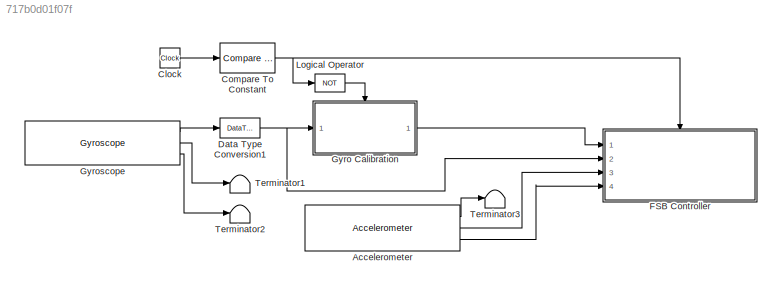
MODEL slx_717b0d01f07f
KIND model
CONFIG AbsTol = auto
CONFIG FixedStep = auto
CONFIG MaxStep = auto
CONFIG MinStep = auto
CONFIG PostLoadFcn = KLQR=[20.0000   13.2675  -28.8721   -1.6327];\nGS = 1.3316e-04; \nES = 0.0047;\nRw = 0.022; % radius of wheel in meters\nKLQRC=KLQR.*[-Rw -Rw 1 1]; % combined LQR Gain with wheel radius scaling\nTS=.007;tstart=TS*110;\nLPF=tf(1,[.03 1]);\nLPFdt=c2d(LPF,TS,'tustin');\n[num,den] = tfdata(LPFdt);\nCnum=num{:};Cden=den{:};\ndisp('controller loaded')\n
CONFIG RelTol = 1e-3
CONFIG SampleTimeConstraint = Unconstrained
CONFIG Solver = ode45
CONFIG SolverMode = Auto
CONFIG SolverName = ode45
CONFIG StartTime = 0.0
CONFIG StopTime = 10.0
BLOCK [Reference] Accelerometer  REF=RASPlib/Accelerometer
  Ports = [0, 3]
  SimulateUsing = Code generation
  SourceBlock = RASPlib/Accelerometer
  SourceType = soMPU6050Accel
BLOCK [Clock] Clock
BLOCK [Reference] Compare To Constant  REF=simulink/Logic and Bit
Operations/Compare
To Constant
  OutDataTypeStr = boolean
  Ports = [1, 1]
  SourceBlock = simulink/Logic and Bit\nOperations/Compare\nTo Constant
  SourceType = Compare To Constant
  ZeroCross = on
  const = tstart
  relop = >
BLOCK [DataTypeConversion] Data Type Conversion1
  OutDataTypeStr = single
  RndMeth = Floor
  SaturateOnIntegerOverflow = off
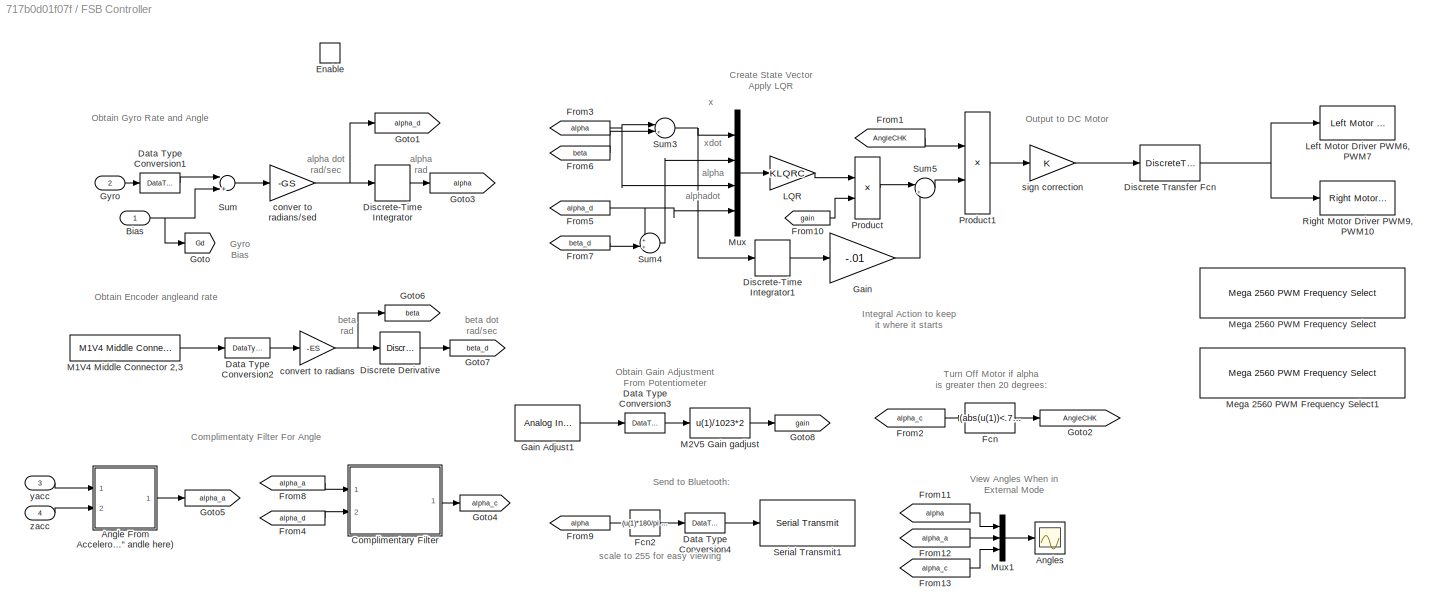
BLOCK [SubSystem] FSB Controller
  Ports = [4, 0, 1]
  RequestExecContextInheritance = off
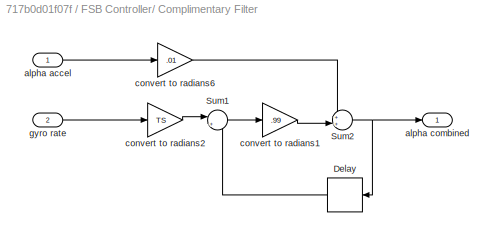
BLOCK [SubSystem] FSB Controller/ Complimentary Filter
  Ports = [2, 1]
  RequestExecContextInheritance = off
BLOCK [Delay] FSB Controller/ Complimentary Filter/Delay
  DelayLength = 1
  InputPortMap = u0
  Ports = [1, 1]
  SampleTime = TS
BLOCK [Sum] FSB Controller/ Complimentary Filter/Sum1
  IconShape = round
  InputSameDT = off
  Inputs = |++
  OutDataTypeStr = Inherit: Inherit via internal rule
  Ports = [2, 1]
  SaturateOnIntegerOverflow = off
BLOCK [Sum] FSB Controller/ Complimentary Filter/Sum2
  IconShape = round
  InputSameDT = off
  Inputs = ++|
  OutDataTypeStr = Inherit: Inherit via internal rule
  Ports = [2, 1]
  SaturateOnIntegerOverflow = off
BLOCK [Inport] FSB Controller/ Complimentary Filter/alpha accel
  IconDisplay = Port number
BLOCK [Outport] FSB Controller/ Complimentary Filter/alpha combined
  IconDisplay = Port number
BLOCK [Gain] FSB Controller/ Complimentary Filter/convert to radians1
  Gain = .99
  OutDataTypeStr = single
  ParamDataTypeStr = Inherit: Inherit via internal rule
  SaturateOnIntegerOverflow = off
BLOCK [Gain] FSB Controller/ Complimentary Filter/convert to radians2
  Gain = TS
  OutDataTypeStr = single
  ParamDataTypeStr = Inherit: Inherit via internal rule
  SaturateOnIntegerOverflow = off
BLOCK [Gain] FSB Controller/ Complimentary Filter/convert to radians6
  Gain = .01
  OutDataTypeStr = single
  ParamDataTypeStr = Inherit: Inherit via internal rule
  SaturateOnIntegerOverflow = off
BLOCK [Inport] FSB Controller/ Complimentary Filter/gyro rate
  IconDisplay = Port number
  Port = 2
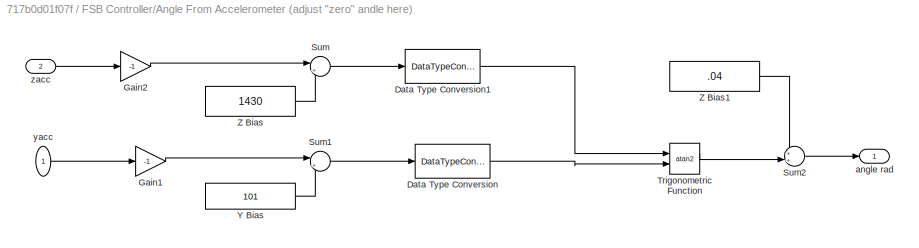
BLOCK [SubSystem] FSB Controller/Angle From Accelerometer (adjust "zero" andle here)
  Ports = [2, 1]
  RequestExecContextInheritance = off
BLOCK [DataTypeConversion] FSB Controller/Angle From Accelerometer (adjust "zero" andle here)/Data Type Conversion
  OutDataTypeStr = single
  RndMeth = Floor
  SaturateOnIntegerOverflow = off
BLOCK [DataTypeConversion] FSB Controller/Angle From Accelerometer (adjust "zero" andle here)/Data Type Conversion1
  OutDataTypeStr = single
  RndMeth = Floor
  SaturateOnIntegerOverflow = off
BLOCK [Gain] FSB Controller/Angle From Accelerometer (adjust "zero" andle here)/Gain1
  Gain = -1
  OutDataTypeStr = Inherit: Inherit via internal rule
  ParamDataTypeStr = Inherit: Inherit via internal rule
  SaturateOnIntegerOverflow = off
BLOCK [Gain] FSB Controller/Angle From Accelerometer (adjust "zero" andle here)/Gain2
  Gain = -1
  OutDataTypeStr = Inherit: Inherit via internal rule
  ParamDataTypeStr = Inherit: Inherit via internal rule
  SaturateOnIntegerOverflow = off
BLOCK [Sum] FSB Controller/Angle From Accelerometer (adjust "zero" andle here)/Sum
  IconShape = round
  InputSameDT = off
  Inputs = |+-
  OutDataTypeStr = Inherit: Inherit via internal rule
  Ports = [2, 1]
  SaturateOnIntegerOverflow = off
BLOCK [Sum] FSB Controller/Angle From Accelerometer (adjust "zero" andle here)/Sum1
  IconShape = round
  InputSameDT = off
  Inputs = |+-
  OutDataTypeStr = Inherit: Inherit via internal rule
  Ports = [2, 1]
  SaturateOnIntegerOverflow = off
BLOCK [Sum] FSB Controller/Angle From Accelerometer (adjust "zero" andle here)/Sum2
  IconShape = round
  InputSameDT = off
  Inputs = ++|
  OutDataTypeStr = Inherit: Inherit via internal rule
  Ports = [2, 1]
  SaturateOnIntegerOverflow = off
BLOCK [Trigonometry] FSB Controller/Angle From Accelerometer (adjust "zero" andle here)/Trigonometric Function
  Operator = atan2
  Ports = [2, 1]
BLOCK [Constant] FSB Controller/Angle From Accelerometer (adjust "zero" andle here)/Y Bias
  Value = 101
BLOCK [Constant] FSB Controller/Angle From Accelerometer (adjust "zero" andle here)/Z Bias
  Value = 1430
BLOCK [Constant] FSB Controller/Angle From Accelerometer (adjust "zero" andle here)/Z Bias1
  OutDataTypeStr = single
  Value = .04
BLOCK [Outport] FSB Controller/Angle From Accelerometer (adjust "zero" andle here)/angle rad
  IconDisplay = Port number
BLOCK [Inport] FSB Controller/Angle From Accelerometer (adjust "zero" andle here)/yacc
  IconDisplay = Port number
BLOCK [Inport] FSB Controller/Angle From Accelerometer (adjust "zero" andle here)/zacc
  IconDisplay = Port number
  Port = 2
BLOCK [Scope] FSB Controller/Angles
  DataFormat = StructureWithTime
  Floating = off
  NumInputPorts = 1
  Ports = [1]
  SampleTime = 0
  SaveName = ScopeData2
  YMax = 0.6
  YMin = -0.5
BLOCK [Inport] FSB Controller/Bias
  IconDisplay = Port number
BLOCK [DataTypeConversion] FSB Controller/Data Type Conversion1
  OutDataTypeStr = single
  RndMeth = Floor
  SaturateOnIntegerOverflow = off
BLOCK [DataTypeConversion] FSB Controller/Data Type Conversion2
  OutDataTypeStr = single
  RndMeth = Floor
  SaturateOnIntegerOverflow = off
BLOCK [DataTypeConversion] FSB Controller/Data Type Conversion3
  OutDataTypeStr = single
  RndMeth = Floor
  SaturateOnIntegerOverflow = off
BLOCK [DataTypeConversion] FSB Controller/Data Type Conversion4
  OutDataTypeStr = uint8
  RndMeth = Floor
  SaturateOnIntegerOverflow = off
BLOCK [Reference] FSB Controller/Discrete Derivative  REF=simulink/Discrete/Discrete Derivative
  DoSatur = off
  ICPrevScaledInput = 0.0
  InputProcessing = Inherited
  LockScale = off
  OutDataType = fixdt(1, 16)
  OutDataTypeStr = Inherit: Inherit via internal rule
  OutMax = []
  OutMin = []
  OutScaling = 2^-10
  OutputDataTypeScalingMode = Inherit via internal rule
  Ports = [1, 1]
  RndMeth = Floor
  SourceBlock = simulink/Discrete/Discrete Derivative
  SourceType = Discrete Derivative
  gainval = 1.0
BLOCK [DiscreteTransferFcn] FSB Controller/Discrete Transfer Fcn
  Denominator = Cden
  InputPortMap = u0
  Numerator = Cnum
  Ports = [1, 1]
BLOCK [DiscreteIntegrator] FSB Controller/Discrete-Time Integrator
  Ports = [1, 1]
  SampleTime = TS
BLOCK [DiscreteIntegrator] FSB Controller/Discrete-Time Integrator1
  Ports = [1, 1]
  SampleTime = TS
BLOCK [EnablePort] FSB Controller/Enable
  Ports = []
BLOCK [Fcn] FSB Controller/Fcn
  Expr = (abs(u(1))<.75)
BLOCK [Fcn] FSB Controller/Fcn2
  Expr = (u(1)*180/pi   + 10)/20*255
BLOCK [From] FSB Controller/From1
  GotoTag = AngleCHK
BLOCK [From] FSB Controller/From10
  GotoTag = gain
BLOCK [From] FSB Controller/From11
  GotoTag = alpha
BLOCK [From] FSB Controller/From12
  GotoTag = alpha_a
BLOCK [From] FSB Controller/From13
  GotoTag = alpha_c
BLOCK [From] FSB Controller/From2
  GotoTag = alpha_c
BLOCK [From] FSB Controller/From3
  GotoTag = alpha
BLOCK [From] FSB Controller/From4
  GotoTag = alpha_d
BLOCK [From] FSB Controller/From5
  GotoTag = alpha_d
BLOCK [From] FSB Controller/From6
  GotoTag = beta
BLOCK [From] FSB Controller/From7
  GotoTag = beta_d
BLOCK [From] FSB Controller/From8
  GotoTag = alpha_a
BLOCK [From] FSB Controller/From9
  GotoTag = alpha
BLOCK [Gain] FSB Controller/Gain
  Gain = -.01
  Multiplication = Matrix(K*u)
  OutDataTypeStr = Inherit: Inherit via internal rule
  ParamDataTypeStr = Inherit: Inherit via internal rule
  SaturateOnIntegerOverflow = off
BLOCK [Reference] FSB Controller/Gain Adjust1  REF=arduinolib/Analog Input
  Ports = [0, 1]
  SourceBlock = arduinolib/Analog Input
  SourceType = Arduino Analog Input
  blockPlatform = arduino
  pinNumber = 0
  sampleTime = -1
BLOCK [Goto] FSB Controller/Goto
  GotoTag = Gd
BLOCK [Goto] FSB Controller/Goto1
  GotoTag = alpha_d
BLOCK [Goto] FSB Controller/Goto2
  GotoTag = AngleCHK
BLOCK [Goto] FSB Controller/Goto3
  GotoTag = alpha
BLOCK [Goto] FSB Controller/Goto4
  GotoTag = alpha_c
BLOCK [Goto] FSB Controller/Goto5
  GotoTag = alpha_a
BLOCK [Goto] FSB Controller/Goto6
  GotoTag = beta
BLOCK [Goto] FSB Controller/Goto7
  GotoTag = beta_d
BLOCK [Goto] FSB Controller/Goto8
  GotoTag = gain
BLOCK [Inport] FSB Controller/Gyro
  IconDisplay = Port number
  Port = 2
BLOCK [Gain] FSB Controller/LQR
  Gain = KLQRC
  Multiplication = Matrix(K*u)
  OutDataTypeStr = Inherit: Inherit via internal rule
  ParamDataTypeStr = Inherit: Inherit via internal rule
  SaturateOnIntegerOverflow = off
BLOCK [Reference] FSB Controller/Left Motor Driver PWM6, PWM7  REF=MinSegLibrary_M2V5/Left Motor Driver
PWM6, PWM7
  PWMoffset = 0
  Ports = [1]
  SourceBlock = MinSegLibrary_M2V5/Left Motor Driver\nPWM6, PWM7
  Vsupply = 7.6
BLOCK [Reference] FSB Controller/M1V4 Middle Connector 2,3  REF=MinSegLibrary_M1V4/M1V4 Middle Connector 2,3
  Encoder = 0
  PinA = 2
  PinB = 3
  Ports = [0, 1]
  SourceBlock = MinSegLibrary_M1V4/M1V4 Middle Connector 2,3
  SourceType = Encoder_arduino
BLOCK [Fcn] FSB Controller/M2V5 Gain gadjust
  Expr = u(1)/1023*2
BLOCK [Reference] FSB Controller/Mega 2560 PWM Frequency Select  REF=RASPlib/Mega 2560 PWM Frequency Select
  Frequency = 32KHz
  Ports = []
  SourceBlock = RASPlib/Mega 2560 PWM Frequency Select
  Timer = 4 - pins 6, 7, 8
BLOCK [Reference] FSB Controller/Mega 2560 PWM Frequency Select1  REF=RASPlib/Mega 2560 PWM Frequency Select
  Frequency = 32KHz
  Ports = []
  SourceBlock = RASPlib/Mega 2560 PWM Frequency Select
  Timer = 2 - pins 9, 10
BLOCK [Mux] FSB Controller/Mux
  DisplayOption = bar
  Ports = [4, 1]
BLOCK [Mux] FSB Controller/Mux1
  DisplayOption = bar
  Inputs = 3
  Ports = [3, 1]
BLOCK [Product] FSB Controller/Product
  InputSameDT = off
  OutDataTypeStr = Inherit: Inherit via internal rule
  Ports = [2, 1]
  SaturateOnIntegerOverflow = off
BLOCK [Product] FSB Controller/Product1
  InputSameDT = off
  OutDataTypeStr = Inherit: Inherit via internal rule
  Ports = [2, 1]
  SaturateOnIntegerOverflow = off
BLOCK [Reference] FSB Controller/Right Motor Driver PWM9, PWM10   REF=MinSegLibrary_M2V5/Right Motor Driver
PWM9, PWM10

  PWMoffset = 0
  Ports = [1]
  SourceBlock = MinSegLibrary_M2V5/Right Motor Driver\nPWM9, PWM10
  Vsupply = 7.6
BLOCK [Reference] FSB Controller/Serial Transmit1  REF=arduinolib/Serial Transmit
  Ports = [1]
  SourceBlock = arduinolib/Serial Transmit
  SourceType = Arduino Serial Transmit
  blockPlatform = arduino
  portNumber = 3
BLOCK [Sum] FSB Controller/Sum
  InputSameDT = off
  Inputs = |+-
  OutDataTypeStr = Inherit: Inherit via internal rule
  Ports = [2, 1]
  SaturateOnIntegerOverflow = off
BLOCK [Sum] FSB Controller/Sum3
  IconShape = round
  InputSameDT = off
  Inputs = |++
  OutDataTypeStr = Inherit: Inherit via internal rule
  Ports = [2, 1]
  SaturateOnIntegerOverflow = off
BLOCK [Sum] FSB Controller/Sum4
  IconShape = round
  InputSameDT = off
  Inputs = ++|
  OutDataTypeStr = Inherit: Inherit via internal rule
  Ports = [2, 1]
  SaturateOnIntegerOverflow = off
BLOCK [Sum] FSB Controller/Sum5
  IconShape = round
  InputSameDT = off
  Inputs = |++
  OutDataTypeStr = Inherit: Inherit via internal rule
  Ports = [2, 1]
  SaturateOnIntegerOverflow = off
BLOCK [Gain] FSB Controller/conver to radians//sed
  Gain = -GS
  OutDataTypeStr = single
  ParamDataTypeStr = Inherit: Inherit via internal rule
  SaturateOnIntegerOverflow = off
BLOCK [Gain] FSB Controller/convert to radians
  Gain = -ES
  OutDataTypeStr = single
  ParamDataTypeStr = Inherit: Inherit via internal rule
  SaturateOnIntegerOverflow = off
BLOCK [Gain] FSB Controller/sign correction
  OutDataTypeStr = single
  ParamDataTypeStr = Inherit: Inherit via internal rule
  SaturateOnIntegerOverflow = off
BLOCK [Inport] FSB Controller/yacc 
  IconDisplay = Port number
  Port = 3
BLOCK [Inport] FSB Controller/zacc 
  IconDisplay = Port number
  Port = 4
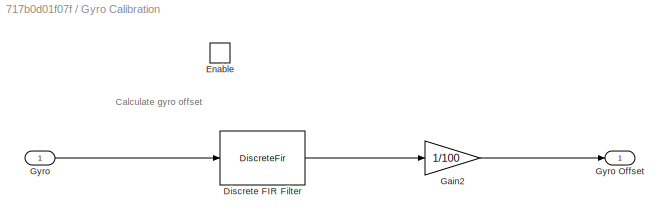
BLOCK [SubSystem] Gyro Calibration
  Ports = [1, 1, 1]
  RequestExecContextInheritance = off
  TreatAsAtomicUnit = on
BLOCK [DiscreteFir] Gyro Calibration/Discrete FIR Filter
  Coefficients = ones(1,100)
  Ports = [1, 1]
BLOCK [EnablePort] Gyro Calibration/Enable
  Ports = []
BLOCK [Gain] Gyro Calibration/Gain2
  Gain = 1/100
  SaturateOnIntegerOverflow = off
BLOCK [Inport] Gyro Calibration/Gyro
  IconDisplay = Port number
BLOCK [Outport] Gyro Calibration/Gyro Offset
  IconDisplay = Port number
BLOCK [Reference] Gyroscope  REF=RASPlib/Gyroscope
  DLPFmode = 0
  Ports = [0, 3]
  SourceBlock = RASPlib/Gyroscope
  SourceType = soMPU6050Gyro
BLOCK [Logic] Logical Operator
  AllPortsSameDT = off
  Operator = NOT
  OutDataTypeStr = boolean
  Ports = [1, 1]
BLOCK [Terminator] Terminator1
BLOCK [Terminator] Terminator2
BLOCK [Terminator] Terminator3
ANNOTATION FSB Controller: Complimentaty Filter For Angle
ANNOTATION FSB Controller: Create State Vector Apply LQR
ANNOTATION FSB Controller: Gyro Bias
ANNOTATION FSB Controller: Integral Action to keep it where it starts
ANNOTATION FSB Controller: Obtain Encoder angleand rate
ANNOTATION FSB Controller: Obtain Gain Adjustment From Potentiometer
ANNOTATION FSB Controller: Obtain Gyro Rate and Angle
ANNOTATION FSB Controller: Output to DC Motor
ANNOTATION FSB Controller: Send to Bluetooth:
ANNOTATION FSB Controller: Turn Off Motor if alpha is greater then 20 degrees:
ANNOTATION FSB Controller: View Angles When in External Mode
ANNOTATION FSB Controller: alpha
ANNOTATION FSB Controller: alpha rad
ANNOTATION FSB Controller: alpha dot rad/sec
ANNOTATION FSB Controller: alphadot
ANNOTATION FSB Controller: beta rad
ANNOTATION FSB Controller: beta dot rad/sec
ANNOTATION FSB Controller: scale to 255 for easy viewing
ANNOTATION FSB Controller: x
ANNOTATION FSB Controller: xdot
ANNOTATION Gyro Calibration: Calculate gyro offset
LINE Accelerometer:1 -> Terminator3:1
LINE Accelerometer:2 -> FSB Controller:3
LINE Accelerometer:3 -> FSB Controller:4
LINE Clock:1 -> Compare To Constant:1
NET Compare To Constant:1 -> FSB Controller:enable, Logical Operator:1
NET Data Type Conversion1:1 -> FSB Controller:2, Gyro Calibration:1
LINE FSB Controller/ Complimentary Filter/Delay:1 -> FSB Controller/ Complimentary Filter/Sum1:2
LINE FSB Controller/ Complimentary Filter/Sum1:1 -> FSB Controller/ Complimentary Filter/convert to radians1:1
NET FSB Controller/ Complimentary Filter/Sum2:1 -> FSB Controller/ Complimentary Filter/Delay:1, FSB Controller/ Complimentary Filter/alpha combined:1
LINE FSB Controller/ Complimentary Filter/alpha accel:1 -> FSB Controller/ Complimentary Filter/convert to radians6:1
LINE FSB Controller/ Complimentary Filter/convert to radians1:1 -> FSB Controller/ Complimentary Filter/Sum2:2
LINE FSB Controller/ Complimentary Filter/convert to radians2:1 -> FSB Controller/ Complimentary Filter/Sum1:1
LINE FSB Controller/ Complimentary Filter/convert to radians6:1 -> FSB Controller/ Complimentary Filter/Sum2:1
LINE FSB Controller/ Complimentary Filter/gyro rate:1 -> FSB Controller/ Complimentary Filter/convert to radians2:1
LINE FSB Controller/ Complimentary Filter:1 -> FSB Controller/Goto4:1
LINE FSB Controller/Angle From Accelerometer (adjust "zero" andle here)/Data Type Conversion1:1 -> FSB Controller/Angle From Accelerometer (adjust "zero" andle here)/Trigonometric Function:1
LINE FSB Controller/Angle From Accelerometer (adjust "zero" andle here)/Data Type Conversion:1 -> FSB Controller/Angle From Accelerometer (adjust "zero" andle here)/Trigonometric Function:2
LINE FSB Controller/Angle From Accelerometer (adjust "zero" andle here)/Gain1:1 -> FSB Controller/Angle From Accelerometer (adjust "zero" andle here)/Sum1:1
LINE FSB Controller/Angle From Accelerometer (adjust "zero" andle here)/Gain2:1 -> FSB Controller/Angle From Accelerometer (adjust "zero" andle here)/Sum:1
LINE FSB Controller/Angle From Accelerometer (adjust "zero" andle here)/Sum1:1 -> FSB Controller/Angle From Accelerometer (adjust "zero" andle here)/Data Type Conversion:1
LINE FSB Controller/Angle From Accelerometer (adjust "zero" andle here)/Sum2:1 -> FSB Controller/Angle From Accelerometer (adjust "zero" andle here)/angle rad:1
LINE FSB Controller/Angle From Accelerometer (adjust "zero" andle here)/Sum:1 -> FSB Controller/Angle From Accelerometer (adjust "zero" andle here)/Data Type Conversion1:1
LINE FSB Controller/Angle From Accelerometer (adjust "zero" andle here)/Trigonometric Function:1 -> FSB Controller/Angle From Accelerometer (adjust "zero" andle here)/Sum2:2
LINE FSB Controller/Angle From Accelerometer (adjust "zero" andle here)/Y Bias:1 -> FSB Controller/Angle From Accelerometer (adjust "zero" andle here)/Sum1:2
LINE FSB Controller/Angle From Accelerometer (adjust "zero" andle here)/Z Bias1:1 -> FSB Controller/Angle From Accelerometer (adjust "zero" andle here)/Sum2:1
LINE FSB Controller/Angle From Accelerometer (adjust "zero" andle here)/Z Bias:1 -> FSB Controller/Angle From Accelerometer (adjust "zero" andle here)/Sum:2
LINE FSB Controller/Angle From Accelerometer (adjust "zero" andle here)/yacc:1 -> FSB Controller/Angle From Accelerometer (adjust "zero" andle here)/Gain1:1
LINE FSB Controller/Angle From Accelerometer (adjust "zero" andle here)/zacc:1 -> FSB Controller/Angle From Accelerometer (adjust "zero" andle here)/Gain2:1
LINE FSB Controller/Angle From Accelerometer (adjust "zero" andle here):1 -> FSB Controller/Goto5:1
NET FSB Controller/Bias:1 -> FSB Controller/Goto:1, FSB Controller/Sum:2
LINE FSB Controller/Data Type Conversion1:1 -> FSB Controller/Sum:1
LINE FSB Controller/Data Type Conversion2:1 -> FSB Controller/convert to radians:1
LINE FSB Controller/Data Type Conversion3:1 -> FSB Controller/M2V5 Gain gadjust:1
LINE FSB Controller/Data Type Conversion4:1 -> FSB Controller/Serial Transmit1:1
LINE FSB Controller/Discrete Derivative:1 -> FSB Controller/Goto7:1
NET FSB Controller/Discrete Transfer Fcn:1 -> FSB Controller/Left Motor Driver PWM6, PWM7:1, FSB Controller/Right Motor Driver PWM9, PWM10 :1
LINE FSB Controller/Discrete-Time Integrator1:1 -> FSB Controller/Gain:1
LINE FSB Controller/Discrete-Time Integrator:1 -> FSB Controller/Goto3:1
LINE FSB Controller/Fcn2:1 -> FSB Controller/Data Type Conversion4:1
LINE FSB Controller/Fcn:1 -> FSB Controller/Goto2:1
LINE FSB Controller/From10:1 -> FSB Controller/Product:2
LINE FSB Controller/From11:1 -> FSB Controller/Mux1:1
LINE FSB Controller/From12:1 -> FSB Controller/Mux1:2
LINE FSB Controller/From13:1 -> FSB Controller/Mux1:3
LINE FSB Controller/From1:1 -> FSB Controller/Product1:1
LINE FSB Controller/From2:1 -> FSB Controller/Fcn:1
NET FSB Controller/From3:1 -> FSB Controller/Mux:3, FSB Controller/Sum3:1
LINE FSB Controller/From4:1 -> FSB Controller/ Complimentary Filter:2
NET FSB Controller/From5:1 -> FSB Controller/Mux:4, FSB Controller/Sum4:1
LINE FSB Controller/From6:1 -> FSB Controller/Sum3:2
LINE FSB Controller/From7:1 -> FSB Controller/Sum4:2
LINE FSB Controller/From8:1 -> FSB Controller/ Complimentary Filter:1
LINE FSB Controller/From9:1 -> FSB Controller/Fcn2:1
LINE FSB Controller/Gain Adjust1:1 -> FSB Controller/Data Type Conversion3:1
LINE FSB Controller/Gain:1 -> FSB Controller/Sum5:2
LINE FSB Controller/Gyro:1 -> FSB Controller/Data Type Conversion1:1
LINE FSB Controller/LQR:1 -> FSB Controller/Product:1
LINE FSB Controller/M1V4 Middle Connector 2,3:1 -> FSB Controller/Data Type Conversion2:1
LINE FSB Controller/M2V5 Gain gadjust:1 -> FSB Controller/Goto8:1
LINE FSB Controller/Mux1:1 -> FSB Controller/Angles:1
LINE FSB Controller/Mux:1 -> FSB Controller/LQR:1
LINE FSB Controller/Product1:1 -> FSB Controller/sign correction:1
LINE FSB Controller/Product:1 -> FSB Controller/Sum5:1
NET FSB Controller/Sum3:1 -> FSB Controller/Discrete-Time Integrator1:1, FSB Controller/Mux:1
LINE FSB Controller/Sum4:1 -> FSB Controller/Mux:2
LINE FSB Controller/Sum5:1 -> FSB Controller/Product1:2
LINE FSB Controller/Sum:1 -> FSB Controller/conver to radians//sed:1
NET FSB Controller/conver to radians//sed:1 -> FSB Controller/Discrete-Time Integrator:1, FSB Controller/Goto1:1
NET FSB Controller/convert to radians:1 -> FSB Controller/Discrete Derivative:1, FSB Controller/Goto6:1
LINE FSB Controller/sign correction:1 -> FSB Controller/Discrete Transfer Fcn:1
LINE FSB Controller/yacc :1 -> FSB Controller/Angle From Accelerometer (adjust "zero" andle here):1
LINE FSB Controller/zacc :1 -> FSB Controller/Angle From Accelerometer (adjust "zero" andle here):2
LINE Gyro Calibration/Discrete FIR Filter:1 -> Gyro Calibration/Gain2:1
LINE Gyro Calibration/Gain2:1 -> Gyro Calibration/Gyro Offset:1
LINE Gyro Calibration/Gyro:1 -> Gyro Calibration/Discrete FIR Filter:1
LINE Gyro Calibration:1 -> FSB Controller:1
LINE Gyroscope:1 -> Data Type Conversion1:1
LINE Gyroscope:2 -> Terminator1:1
LINE Gyroscope:3 -> Terminator2:1
LINE Logical Operator:1 -> Gyro Calibration:enable
note: NET lines group one-source signal fan-out (src -> all destinations, sorted); 1:1 wires keep LINE
